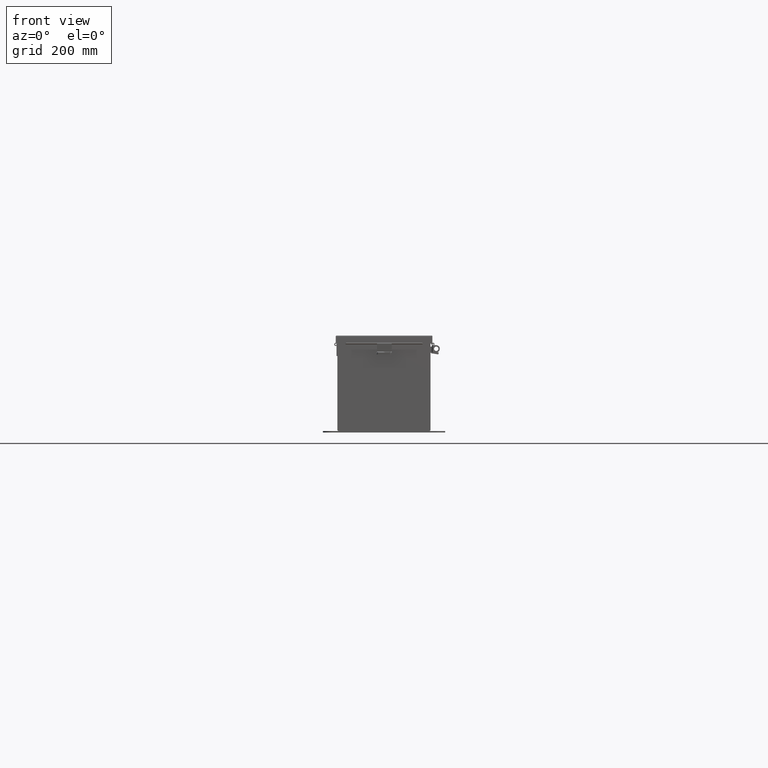
[diagram: clean part render]
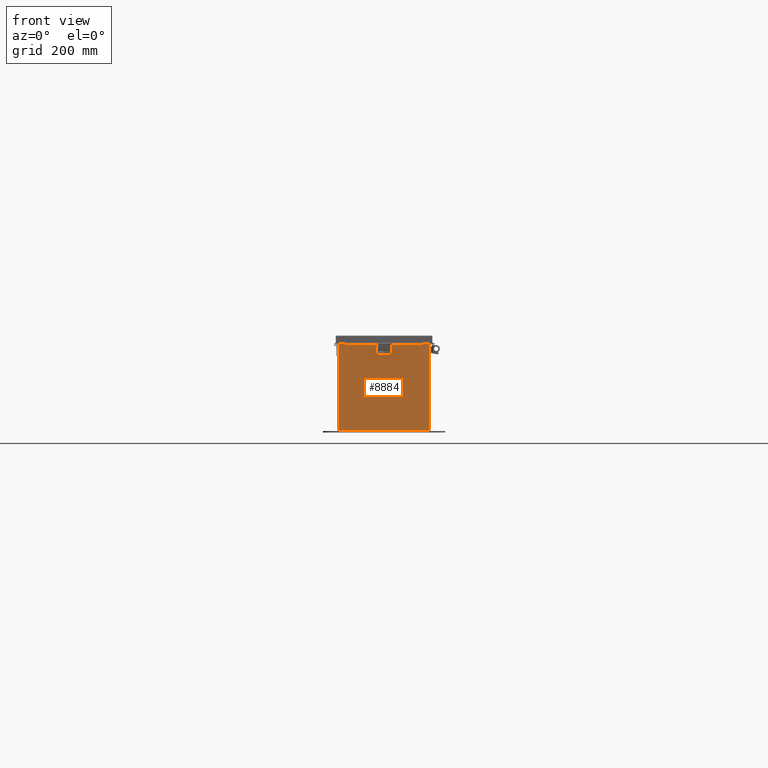
[diagram: same view with one face highlighted and labeled with its STEP entity id]
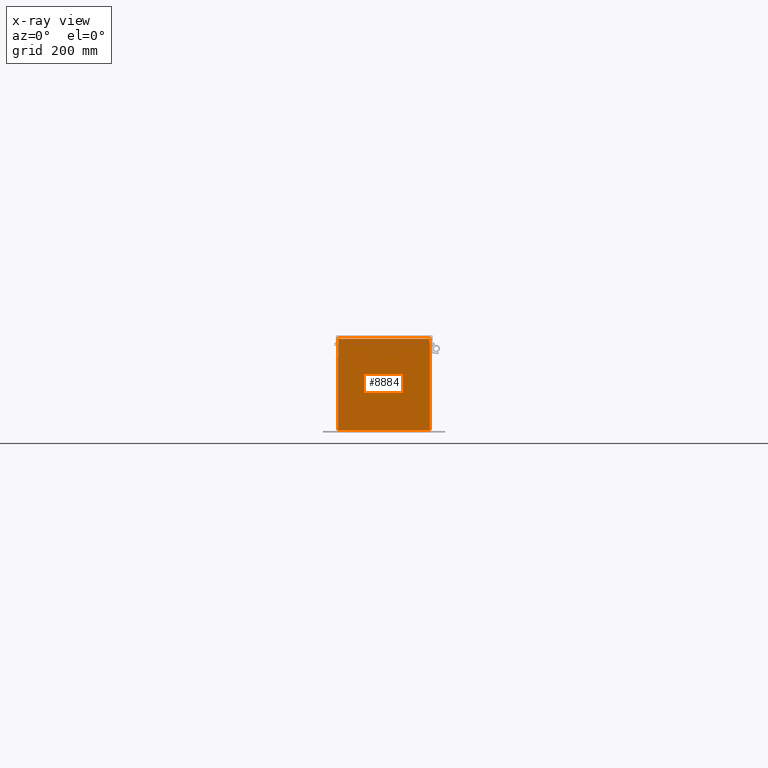
[diagram: x-ray of the same camera — body ghosted, the highlighted face saturated]
A machine part, front view. The second image highlights one B-rep face of the part: STEP entity #8884.
The next image is the same camera in x-ray: the body ghosted, the highlighted face saturated — about 0% of this face is hidden behind the body in this view.
In plain terms, the highlighted planar face has unit normal (-0, 1, -0).
Its self-contained STEP definition (entity closure, byte-faithful):
#388 = VERTEX_POINT ( 'NONE', #6312 ) ;
#645 = DIRECTION ( 'NONE',  ( 0.0000000000000000000, 0.0000000000000000000, -1.000000000000000000 ) ) ;
#647 = LINE ( 'NONE', #33832, #36506 ) ;
#1163 = LINE ( 'NONE', #37808, #20118 ) ;
#1626 = ORIENTED_EDGE ( 'NONE', *, *, #38545, .T. ) ;
#1841 = ORIENTED_EDGE ( 'NONE', *, *, #12570, .F. ) ;
#1892 = CARTESIAN_POINT ( 'NONE',  ( 3.619649999999915200, 0.0000000000000000000, -7.867722221753078700E-014 ) ) ;
#2792 = FACE_OUTER_BOUND ( 'NONE', #10243, .T. ) ;
#2971 = LINE ( 'NONE', #40103, #10872 ) ;
#3014 = CIRCLE ( 'NONE', #25525, 0.01867500000000003900 ) ;
#4069 = DIRECTION ( 'NONE',  ( 0.0000000000000000000, 0.0000000000000000000, -1.000000000000000000 ) ) ;
#4711 = VERTEX_POINT ( 'NONE', #25131 ) ;
#5031 = ORIENTED_EDGE ( 'NONE', *, *, #43473, .F. ) ;
#5632 = ORIENTED_EDGE ( 'NONE', *, *, #41095, .T. ) ;
#5972 = VECTOR ( 'NONE', #7089, 39.37007874015748100 ) ;
#6312 = CARTESIAN_POINT ( 'NONE',  ( -3.619650000000000500, -3.933861110876539400E-014, 3.925299999999999100 ) ) ;
#6902 = EDGE_CURVE ( 'NONE', #4711, #388, #24007, .T. ) ;
#7089 = DIRECTION ( 'NONE',  ( -1.000000000000000000, -5.526334185345597900E-031, 0.0000000000000000000 ) ) ;
#7802 = CARTESIAN_POINT ( 'NONE',  ( -3.582300000000000000, -3.496765431890256900E-014, 3.912299999999999200 ) ) ;
#8294 = AXIS2_PLACEMENT_3D ( 'NONE', #40957, #20783, #645 ) ;
#8304 = CARTESIAN_POINT ( 'NONE',  ( -3.600974999999995200, -3.933861110876539400E-014, 3.874949999999997900 ) ) ;
#8450 = ORIENTED_EDGE ( 'NONE', *, *, #39816, .T. ) ;
#8506 = VECTOR ( 'NONE', #38063, 39.37007874015748100 ) ;
#8884 = ADVANCED_FACE ( 'NONE', ( #2792 ), #13778, .F. ) ;
#9240 = DIRECTION ( 'NONE',  ( 1.000000000000000000, 5.526334185345597900E-031, 0.0000000000000000000 ) ) ;
#9882 = ORIENTED_EDGE ( 'NONE', *, *, #31709, .T. ) ;
#10243 = EDGE_LOOP ( 'NONE', ( #33183, #28899, #43102, #1626, #28650, #5031, #1841, #8450, #5632, #25838, #9882, #23130 ) ) ;
#10360 = DIRECTION ( 'NONE',  ( 1.000000000000000000, 5.526334185345597900E-031, 0.0000000000000000000 ) ) ;
#10872 = VECTOR ( 'NONE', #30057, 39.37007874015748100 ) ;
#11666 = CARTESIAN_POINT ( 'NONE',  ( 3.582300000000004000, -3.933861110876539400E-014, 3.874950000000000100 ) ) ;
#11694 = DIRECTION ( 'NONE',  ( 0.0000000000000000000, 0.0000000000000000000, -1.000000000000000000 ) ) ;
#12570 = EDGE_CURVE ( 'NONE', #27880, #30406, #31588, .T. ) ;
#13691 = DIRECTION ( 'NONE',  ( 0.0000000000000000000, 0.0000000000000000000, 1.000000000000000000 ) ) ;
#13778 = PLANE ( 'NONE',  #42448 ) ;
#14670 = VERTEX_POINT ( 'NONE', #27322 ) ;
#15547 = VECTOR ( 'NONE', #9240, 39.37007874015748100 ) ;
#15650 = CARTESIAN_POINT ( 'NONE',  ( -3.925300000000000500, 0.0000000000000000000, -3.925300000000004900 ) ) ;
#16923 = EDGE_CURVE ( 'NONE', #37449, #22106, #32826, .T. ) ;
#17082 = LINE ( 'NONE', #33900, #33915 ) ;
#17150 = CARTESIAN_POINT ( 'NONE',  ( 0.0000000000000000000, 0.0000000000000000000, 0.0000000000000000000 ) ) ;
#17292 = DIRECTION ( 'NONE',  ( 0.0000000000000000000, 0.0000000000000000000, -1.000000000000000000 ) ) ;
#17355 = EDGE_CURVE ( 'NONE', #37568, #41382, #41730, .T. ) ;
#17496 = EDGE_CURVE ( 'NONE', #14670, #388, #647, .T. ) ;
#20118 = VECTOR ( 'NONE', #4069, 39.37007874015748100 ) ;
#20596 = CARTESIAN_POINT ( 'NONE',  ( 3.925299999999999100, 0.0000000000000000000, -3.925299999999999600 ) ) ;
#20783 = DIRECTION ( 'NONE',  ( 5.526334185345597900E-031, 1.000000000000000000, -0.0000000000000000000 ) ) ;
#20856 = CARTESIAN_POINT ( 'NONE',  ( 3.925299999999999100, -3.933861110876539400E-014, 3.925299999999999100 ) ) ;
#21502 = CARTESIAN_POINT ( 'NONE',  ( 3.582299999999999200, -3.933861110876539400E-014, 3.912299999999999200 ) ) ;
#22106 = VERTEX_POINT ( 'NONE', #15650 ) ;
#22566 = LINE ( 'NONE', #27342, #39450 ) ;
#22618 = VECTOR ( 'NONE', #32218, 39.37007874015748100 ) ;
#23130 = ORIENTED_EDGE ( 'NONE', *, *, #6902, .T. ) ;
#23252 = VERTEX_POINT ( 'NONE', #20856 ) ;
#23852 = CARTESIAN_POINT ( 'NONE',  ( -3.925300000000000500, 0.0000000000000000000, -3.925300000000004900 ) ) ;
#23935 = EDGE_CURVE ( 'NONE', #37150, #37123, #28526, .T. ) ;
#24007 = LINE ( 'NONE', #29391, #15547 ) ;
#24256 = CARTESIAN_POINT ( 'NONE',  ( 3.619650000000000500, -3.933861110876539400E-014, 3.925299999999998200 ) ) ;
#25131 = CARTESIAN_POINT ( 'NONE',  ( -3.925300000000000500, -3.933861110876539400E-014, 3.925299999999998200 ) ) ;
#25525 = AXIS2_PLACEMENT_3D ( 'NONE', #8304, #31848, #11694 ) ;
#25838 = ORIENTED_EDGE ( 'NONE', *, *, #16923, .T. ) ;
#26188 = CARTESIAN_POINT ( 'NONE',  ( -3.582300000000000000, 0.0000000000000000000, -4.917326388595674200E-015 ) ) ;
#27322 = CARTESIAN_POINT ( 'NONE',  ( -3.619649999999995100, -3.933861110876539400E-014, 3.874949999999997900 ) ) ;
#27342 = CARTESIAN_POINT ( 'NONE',  ( -3.925300000000000500, -3.933861110876539400E-014, 3.925299999999998200 ) ) ;
#27596 = CARTESIAN_POINT ( 'NONE',  ( 3.619650000000004000, -3.933861110876539400E-014, 3.874949999999999200 ) ) ;
#27877 = CARTESIAN_POINT ( 'NONE',  ( 3.582299999999999200, 0.0000000000000000000, 0.0000000000000000000 ) ) ;
#27880 = VERTEX_POINT ( 'NONE', #24256 ) ;
#28526 = LINE ( 'NONE', #27877, #8506 ) ;
#28650 = ORIENTED_EDGE ( 'NONE', *, *, #23935, .F. ) ;
#28899 = ORIENTED_EDGE ( 'NONE', *, *, #32520, .F. ) ;
#29391 = CARTESIAN_POINT ( 'NONE',  ( -3.925300000000000500, -3.933861110876539400E-014, 3.925299999999998200 ) ) ;
#29565 = DIRECTION ( 'NONE',  ( 0.0000000000000000000, 0.0000000000000000000, -1.000000000000000000 ) ) ;
#29900 = CIRCLE ( 'NONE', #8294, 0.01867500000000003900 ) ;
#30057 = DIRECTION ( 'NONE',  ( 1.000000000000000000, 5.526334185345597900E-031, -0.0000000000000000000 ) ) ;
#30406 = VERTEX_POINT ( 'NONE', #27596 ) ;
#30723 = DIRECTION ( 'NONE',  ( 0.0000000000000000000, 0.0000000000000000000, 1.000000000000000000 ) ) ;
#31588 = LINE ( 'NONE', #1892, #22618 ) ;
#31709 = EDGE_CURVE ( 'NONE', #22106, #4711, #22566, .T. ) ;
#31848 = DIRECTION ( 'NONE',  ( 5.526334185345597900E-031, 1.000000000000000000, -0.0000000000000000000 ) ) ;
#32218 = DIRECTION ( 'NONE',  ( -2.170286390199978800E-014, -8.874685183736382800E-031, -1.000000000000000000 ) ) ;
#32520 = EDGE_CURVE ( 'NONE', #41382, #14670, #3014, .T. ) ;
#32826 = LINE ( 'NONE', #23852, #5972 ) ;
#33183 = ORIENTED_EDGE ( 'NONE', *, *, #17496, .F. ) ;
#33832 = CARTESIAN_POINT ( 'NONE',  ( -3.619650000000000500, 0.0000000000000000000, 0.0000000000000000000 ) ) ;
#33900 = CARTESIAN_POINT ( 'NONE',  ( -3.925300000000000500, -3.933861110876539400E-014, 3.925299999999998200 ) ) ;
#33915 = VECTOR ( 'NONE', #10360, 39.37007874015748100 ) ;
#36506 = VECTOR ( 'NONE', #13691, 39.37007874015748100 ) ;
#37123 = VERTEX_POINT ( 'NONE', #21502 ) ;
#37150 = VERTEX_POINT ( 'NONE', #11666 ) ;
#37449 = VERTEX_POINT ( 'NONE', #20596 ) ;
#37490 = DIRECTION ( 'NONE',  ( -5.526334185345597900E-031, -1.000000000000000000, -0.0000000000000000000 ) ) ;
#37568 = VERTEX_POINT ( 'NONE', #7802 ) ;
#37808 = CARTESIAN_POINT ( 'NONE',  ( 3.925299999999999100, -3.933861110876539400E-014, 3.925299999999999100 ) ) ;
#38063 = DIRECTION ( 'NONE',  ( 0.0000000000000000000, 0.0000000000000000000, 1.000000000000000000 ) ) ;
#38545 = EDGE_CURVE ( 'NONE', #37568, #37123, #2971, .T. ) ;
#39450 = VECTOR ( 'NONE', #30723, 39.37007874015748100 ) ;
#39816 = EDGE_CURVE ( 'NONE', #27880, #23252, #17082, .T. ) ;
#40103 = CARTESIAN_POINT ( 'NONE',  ( -3.582300000000000000, -3.496765431890256900E-014, 3.912299999999999200 ) ) ;
#40676 = VECTOR ( 'NONE', #29565, 39.37007874015748100 ) ;
#40957 = CARTESIAN_POINT ( 'NONE',  ( 3.600975000000004000, -3.933861110876539400E-014, 3.874949999999999200 ) ) ;
#41095 = EDGE_CURVE ( 'NONE', #23252, #37449, #1163, .T. ) ;
#41382 = VERTEX_POINT ( 'NONE', #43042 ) ;
#41730 = LINE ( 'NONE', #26188, #40676 ) ;
#42448 = AXIS2_PLACEMENT_3D ( 'NONE', #17150, #37490, #17292 ) ;
#43042 = CARTESIAN_POINT ( 'NONE',  ( -3.582299999999995200, -3.933861110876539400E-014, 3.874949999999997900 ) ) ;
#43102 = ORIENTED_EDGE ( 'NONE', *, *, #17355, .F. ) ;
#43473 = EDGE_CURVE ( 'NONE', #30406, #37150, #29900, .T. ) ;